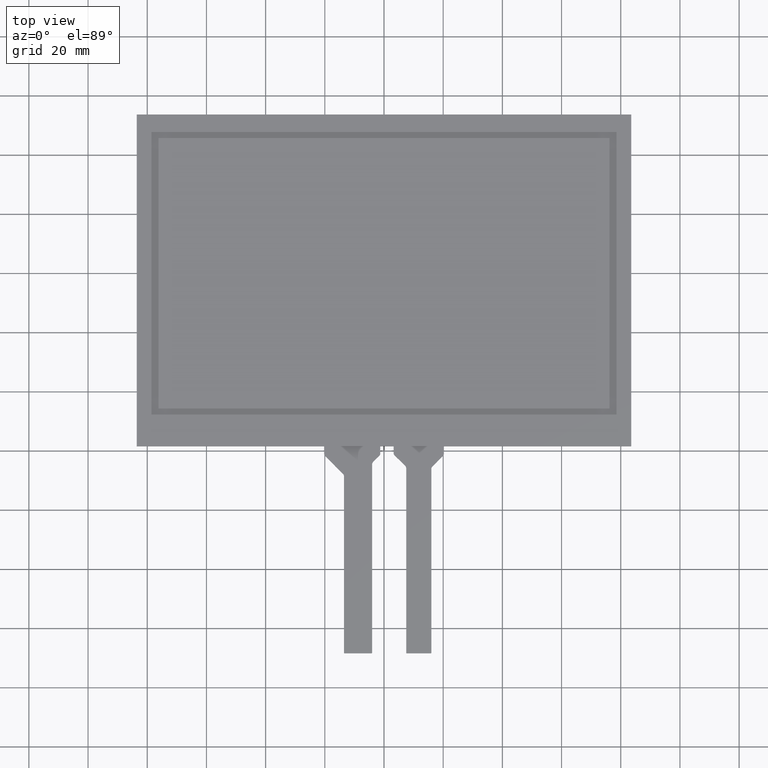
[diagram: clean part render]
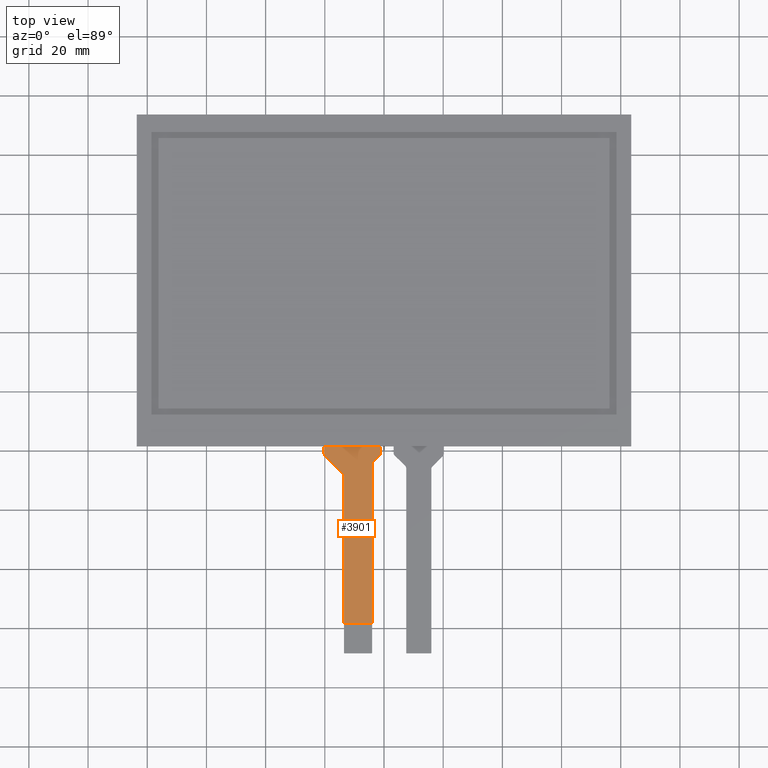
[diagram: same view with one face highlighted and labeled with its STEP entity id]
A machine part, top view. The second image highlights one B-rep face of the part: STEP entity #3901.
In plain terms, the highlighted planar face has unit normal (0, 0, 1).
Its self-contained STEP definition (entity closure, byte-faithful):
#211=PLANE('',#4135);
#401=FACE_OUTER_BOUND('',#591,.T.);
#591=EDGE_LOOP('',(#3624,#3625,#3626,#3627,#3628,#3629,#3630,#3631,#3632,
#3633,#3634,#3635));
#638=LINE('',#5187,#1166);
#649=LINE('',#5213,#1177);
#658=LINE('',#5237,#1186);
#662=LINE('',#5246,#1190);
#1089=LINE('',#6116,#1617);
#1094=LINE('',#6126,#1622);
#1102=LINE('',#6142,#1630);
#1103=LINE('',#6144,#1631);
#1166=VECTOR('',#4220,10.);
#1177=VECTOR('',#4239,10.);
#1186=VECTOR('',#4260,10.);
#1190=VECTOR('',#4270,10.);
#1617=VECTOR('',#5007,10.);
#1622=VECTOR('',#5018,10.);
#1630=VECTOR('',#5038,10.);
#1631=VECTOR('',#5041,10.);
#1676=CIRCLE('',#3955,1.);
#1679=CIRCLE('',#3960,1.);
#1682=CIRCLE('',#3966,1.);
#1683=CIRCLE('',#3969,1.);
#1717=VERTEX_POINT('',#5177);
#1718=VERTEX_POINT('',#5178);
#1721=VERTEX_POINT('',#5186);
#1729=VERTEX_POINT('',#5203);
#1730=VERTEX_POINT('',#5205);
#1732=VERTEX_POINT('',#5211);
#1739=VERTEX_POINT('',#5230);
#1740=VERTEX_POINT('',#5232);
#1741=VERTEX_POINT('',#5236);
#1742=VERTEX_POINT('',#5240);
#1743=VERTEX_POINT('',#5241);
#2031=VERTEX_POINT('',#6114);
#2092=EDGE_CURVE('',#1717,#1718,#1676,.T.);
#2096=EDGE_CURVE('',#1721,#1718,#638,.T.);
#2105=EDGE_CURVE('',#1729,#1730,#1679,.T.);
#2109=EDGE_CURVE('',#1729,#1732,#649,.T.);
#2119=EDGE_CURVE('',#1739,#1740,#1682,.T.);
#2121=EDGE_CURVE('',#1741,#1740,#658,.T.);
#2123=EDGE_CURVE('',#1742,#1743,#1683,.T.);
#2126=EDGE_CURVE('',#1739,#1743,#662,.T.);
#2561=EDGE_CURVE('',#1742,#2031,#1089,.T.);
#2566=EDGE_CURVE('',#2031,#1721,#1094,.T.);
#2574=EDGE_CURVE('',#1717,#1730,#1102,.T.);
#2575=EDGE_CURVE('',#1741,#1732,#1103,.T.);
#3624=ORIENTED_EDGE('',*,*,#2105,.F.);
#3625=ORIENTED_EDGE('',*,*,#2109,.T.);
#3626=ORIENTED_EDGE('',*,*,#2575,.F.);
#3627=ORIENTED_EDGE('',*,*,#2121,.T.);
#3628=ORIENTED_EDGE('',*,*,#2119,.F.);
#3629=ORIENTED_EDGE('',*,*,#2126,.T.);
#3630=ORIENTED_EDGE('',*,*,#2123,.F.);
#3631=ORIENTED_EDGE('',*,*,#2561,.T.);
#3632=ORIENTED_EDGE('',*,*,#2566,.T.);
#3633=ORIENTED_EDGE('',*,*,#2096,.T.);
#3634=ORIENTED_EDGE('',*,*,#2092,.F.);
#3635=ORIENTED_EDGE('',*,*,#2574,.T.);
#3901=ADVANCED_FACE('',(#401),#211,.T.);
#3955=AXIS2_PLACEMENT_3D('',#5179,#4212,#4213);
#3960=AXIS2_PLACEMENT_3D('',#5206,#4232,#4233);
#3966=AXIS2_PLACEMENT_3D('',#5233,#4255,#4256);
#3969=AXIS2_PLACEMENT_3D('',#5242,#4264,#4265);
#4135=AXIS2_PLACEMENT_3D('',#6143,#5039,#5040);
#4212=DIRECTION('center_axis',(0.,0.,1.));
#4213=DIRECTION('ref_axis',(-0.923030632954614,0.384726462083654,0.));
#4220=DIRECTION('',(-4.82898904363424E-16,1.,0.));
#4232=DIRECTION('center_axis',(0.,0.,-1.));
#4233=DIRECTION('ref_axis',(0.923030632954614,-0.384726462083654,0.));
#4239=DIRECTION('',(9.57088814332031E-17,1.,0.));
#4255=DIRECTION('center_axis',(0.,0.,-1.));
#4256=DIRECTION('ref_axis',(-0.92472391004638,-0.380638529563857,0.));
#4260=DIRECTION('',(0.,-1.,0.));
#4264=DIRECTION('center_axis',(0.,0.,1.));
#4265=DIRECTION('ref_axis',(0.924723910046378,0.380638529563862,0.));
#4270=DIRECTION('',(0.703971098745192,-0.710228619622926,0.));
#5007=DIRECTION('',(1.47317701061557E-16,-1.,0.));
#5018=DIRECTION('',(1.,0.,0.));
#5038=DIRECTION('',(0.710228619622929,0.703971098745189,0.));
#5039=DIRECTION('center_axis',(0.,0.,1.));
#5040=DIRECTION('ref_axis',(1.,0.,0.));
#5041=DIRECTION('',(1.,5.31525086594928E-17,0.));
#5177=CARTESIAN_POINT('',(-3.70397109874524,-63.7823502080073,-0.2));
#5178=CARTESIAN_POINT('',(-4.00000000000005,-64.4925788276302,-0.2));
#5179=CARTESIAN_POINT('Origin',(-3.00000000000005,-64.4925788276302,-0.2));
#5186=CARTESIAN_POINT('',(-4.00000000000002,-118.45,-0.2));
#5187=CARTESIAN_POINT('',(-4.00000000000002,-128.45,-0.2));
#5203=CARTESIAN_POINT('',(-1.25000000000004,-60.9331920974798,-0.2));
#5205=CARTESIAN_POINT('',(-1.54602890125485,-61.6434207171028,-0.2));
#5206=CARTESIAN_POINT('Origin',(-2.25000000000004,-60.9331920974798,-0.2));
#5211=CARTESIAN_POINT('',(-1.25000000000004,-58.45,-0.2));
#5213=CARTESIAN_POINT('',(-1.25000000000004,-61.35,-0.2));
#5230=CARTESIAN_POINT('',(-19.960228619623,-61.6423471259804,-0.2));
#5232=CARTESIAN_POINT('',(-20.25,-60.9383760272352,-0.2));
#5233=CARTESIAN_POINT('Origin',(-19.25,-60.9383760272352,-0.2));
#5236=CARTESIAN_POINT('',(-20.25,-58.45,-0.2));
#5237=CARTESIAN_POINT('',(-20.25,-58.45,-0.2));
#5240=CARTESIAN_POINT('',(-13.5,-68.5716239727648,-0.2));
#5241=CARTESIAN_POINT('',(-13.7897713803771,-67.8676528740196,-0.2));
#5242=CARTESIAN_POINT('Origin',(-14.5,-68.5716239727648,-0.2));
#5246=CARTESIAN_POINT('',(-20.25,-61.35,-0.2));
#6114=CARTESIAN_POINT('',(-13.5,-118.45,-0.2));
#6116=CARTESIAN_POINT('',(-13.5,-68.16,-0.2));
#6126=CARTESIAN_POINT('',(-7.37500000000003,-118.45,-0.2));
#6142=CARTESIAN_POINT('',(-4.00000000000005,-64.0757709251101,-0.2));
#6143=CARTESIAN_POINT('Origin',(-10.75,-93.45,-0.2));
#6144=CARTESIAN_POINT('',(36.4,-58.45,-0.2));